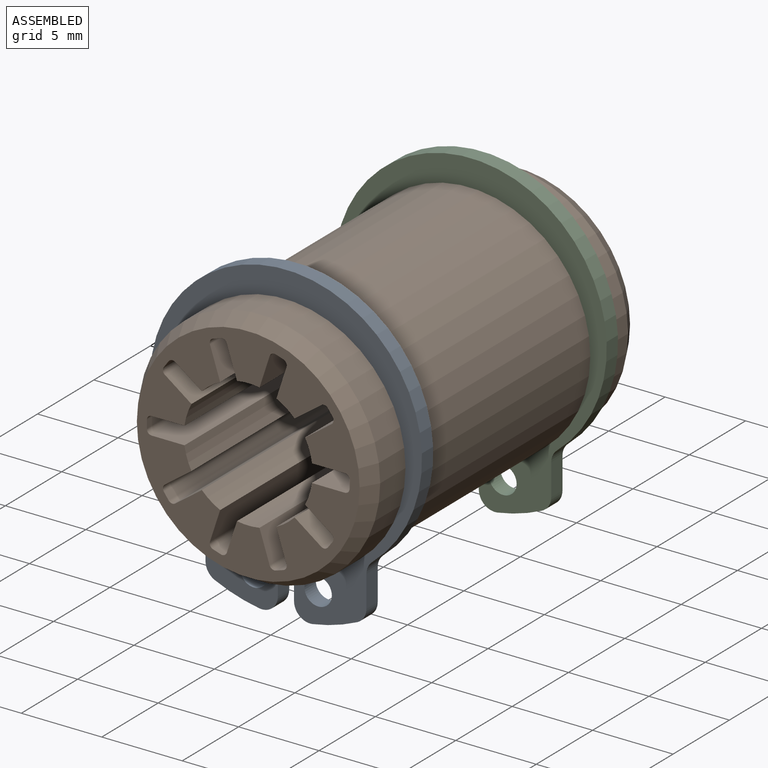
[diagram: assembled view]
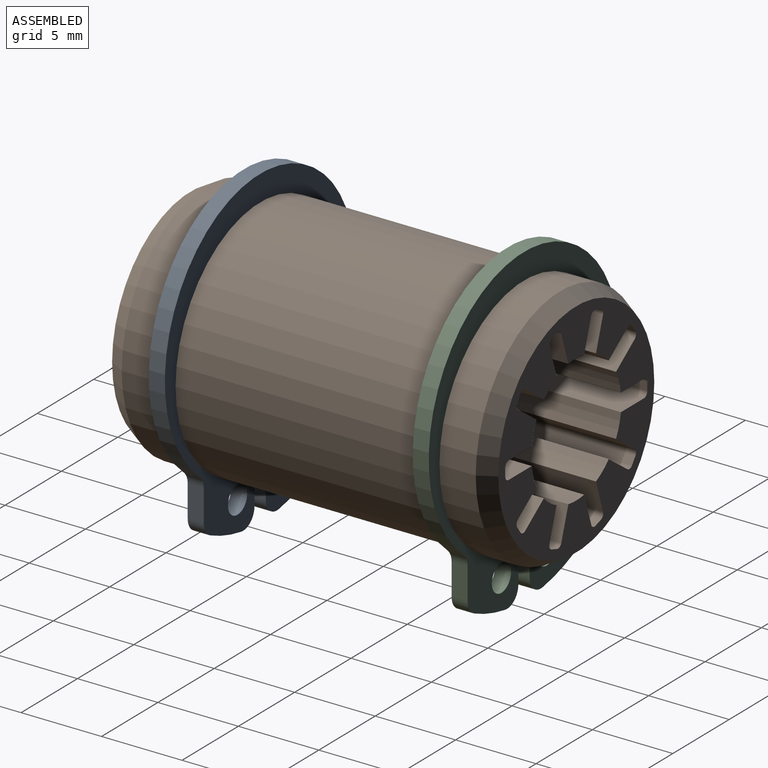
[diagram: assembled view, second angle]
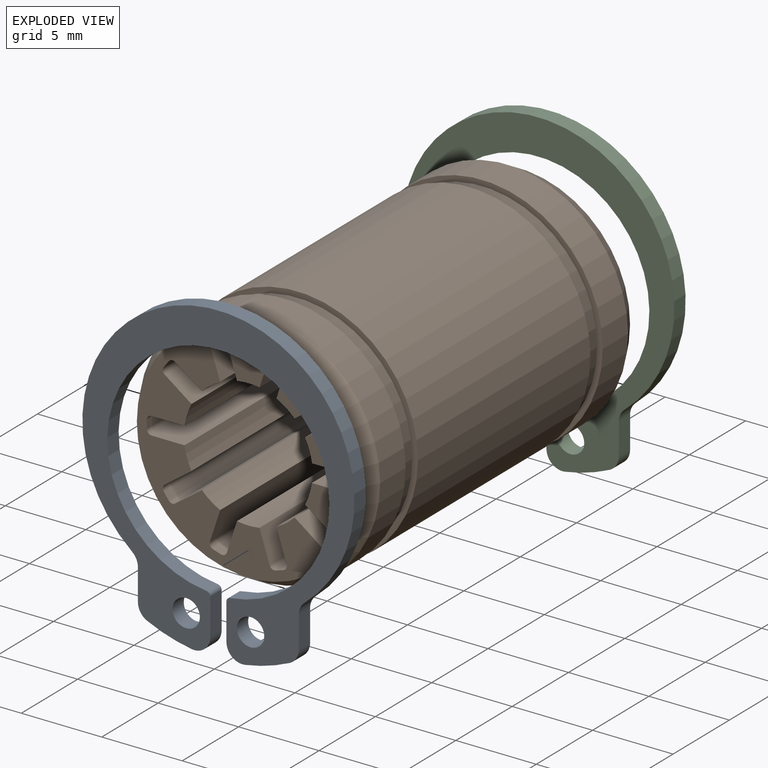
[diagram: exploded view]
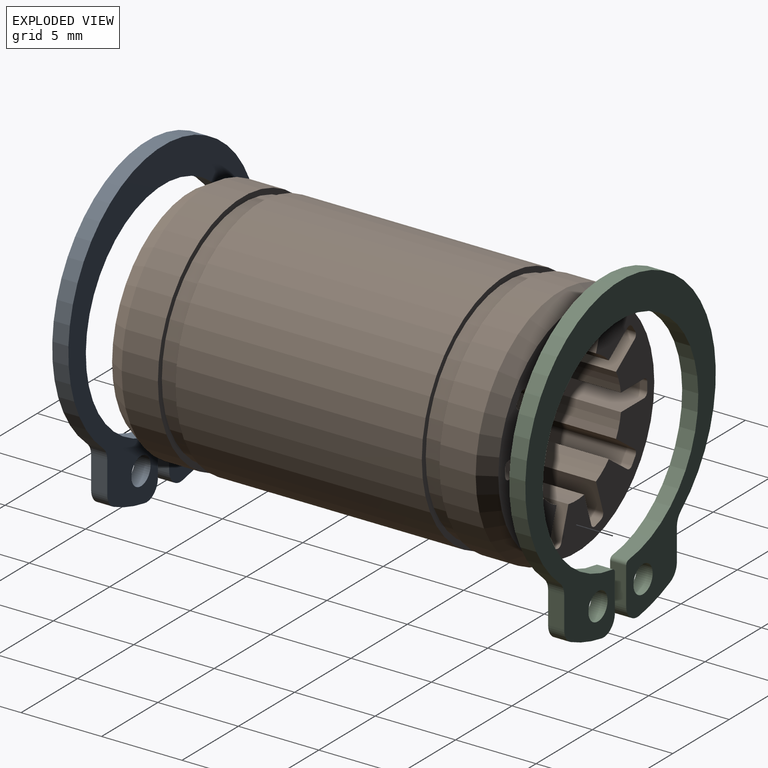
[diagram: exploded view, second angle]
ASSEMBLY  parts=3 mates=2
PART A: 20 faces, bbox 16.9x19.5x1 mm
  f0: plane 1.96x1mm, normal (-1,0,0), area 2mm2, adj f1,f17,f18,f19
  f1: cylinder r=1mm len=1mm, axis (0,0,-1), area 1.1mm2, adj f0,f2,f18,f19
  f2: cylinder r=10.5mm len=2.76mm, axis (0,0,-1), area 2.9mm2, adj f1,f3,f18,f19
  f3: cylinder r=1mm len=1.16mm, axis (0,0,-1), area 1.7mm2, adj f2,f4,f18,f19
  f4: plane 2.27x1mm, normal (1,0,0), area 2.3mm2, adj f3,f5,f18,f19
  f5: cylinder r=0.25mm len=1mm, axis (0,0,-1), area 0.4mm2, adj f4,f6,f18,f19
  f6: cylinder r=6.9mm len=13.8mm, axis (0,0,-1), area 41.9mm2, adj f5,f7,f18,f19
  f7: cylinder r=0.25mm len=1mm, axis (0,0,-1), area 0.4mm2, adj f6,f8,f18,f19
  f8: plane 2.27x1mm, normal (-1,0,0), area 2.3mm2, adj f7,f9,f18,f19
  f9: cylinder r=1mm len=1.16mm, axis (0,0,-1), area 1.7mm2, adj f8,f10,f18,f19
  f10: cylinder r=10.5mm len=2.76mm, axis (0,0,-1), area 2.9mm2, adj f9,f11,f18,f19
  f11: cylinder r=1mm len=1mm, axis (0,0,-1), area 1.1mm2, adj f10,f12,f18,f19
  f12: plane 1.96x1mm, normal (1,0,0), area 2mm2, adj f11,f13,f18,f19
  f13: cylinder r=1mm len=1mm, axis (0,0,-1), area 0.9mm2, adj f12,f14,f18,f19
  f14: cylinder r=8.45mm len=16.91mm, axis (0,0,-1), area 41.5mm2, adj f13,f17,f18,f19
  f15: cylinder r=0.85mm len=1.7mm, axis (0,0,-1), area 5.3mm2, adj f18,f19
  f16: cylinder r=0.85mm len=1.7mm, axis (0,0,-1), area 5.3mm2, adj f18,f19
  f17: cylinder r=1mm len=1mm, axis (0,0,-1), area 0.9mm2, adj f0,f14,f18,f19
  f18: plane 19.48x16.91mm, normal (0,0,1), area 94.2mm2, adj f0,f1,f2,f3,f4,f5,f6,f7
  f19: plane 19.48x16.91mm, normal (0,0,-1), area 94.2mm2, adj f0,f1,f2,f3,f4,f5,f6,f7
PART B: 73 faces, bbox 15x24x15 mm
  f0: cone r=7.21mm half-angle=30deg, axis (0,1,0), area 52.3mm2, adj f3,f72
  f1: cylinder r=7.5mm len=15mm, axis (0,1,0), area 106mm2, adj f2,f68
  f2: cone r=7.21mm half-angle=30deg, axis (0,-1,0), area 52.3mm2, adj f1,f14
  f3: cylinder r=7.5mm len=15mm, axis (0,1,0), area 106mm2, adj f0,f71
  f4: cylinder r=7.15mm len=14.3mm, axis (0,1,0), area 49.4mm2, adj f70,f71
  f5: cylinder r=7.5mm len=15.3mm, axis (0,1,0), area 721mm2, adj f69,f70
  f6: cylinder r=7.15mm len=14.3mm, axis (0,1,0), area 49.4mm2, adj f68,f69
  f7: plane 24x1.65mm, normal (0.59,0,0.81), area 48.9mm2, adj f9,f13,f14,f72
  f8: plane 24x0.4mm, normal (-0.81,0,0.59), area 12mm2, adj f9,f11,f14,f72
  f9: cylinder r=0.3mm len=24mm, axis (0,1,0), area 11.3mm2, adj f7,f8,f14,f72
  f10: plane 24x1.65mm, normal (-0.59,0,-0.81), area 48.9mm2, adj f11,f12,f14,f72
  f11: cylinder r=0.3mm len=24mm, axis (0,1,0), area 11.3mm2, adj f8,f10,f14,f72
  f12: cylinder r=4mm len=24mm, axis (0,1,0), area 33.8mm2, adj f10,f14,f65,f72
  f13: cylinder r=4mm len=24mm, axis (0,1,0), area 33.8mm2, adj f7,f14,f18,f72
  f14: plane 13.85x13.85mm, normal (0,1,0), area 75.2mm2, adj f2,f7,f8,f9,f10,f11,f12,f13
  f15: plane 24x0.48mm, normal (-0.31,0,0.95), area 12mm2, adj f14,f16,f19,f72
  f16: cylinder r=0.3mm len=24mm, axis (0,1,0), area 11.3mm2, adj f14,f15,f17,f72
  f17: plane 24x1.94mm, normal (0.95,0,0.31), area 48.9mm2, adj f14,f16,f25,f72
  f18: plane 24x1.94mm, normal (-0.95,0,-0.31), area 48.9mm2, adj f13,f14,f19,f72
  f19: cylinder r=0.3mm len=24mm, axis (0,1,0), area 11.3mm2, adj f14,f15,f18,f72
  f20: plane 24x1.94mm, normal (0.95,0,-0.31), area 48.9mm2, adj f14,f22,f26,f72
  f21: plane 24x0.48mm, normal (0.31,0,0.95), area 12mm2, adj f14,f22,f24,f72
  f22: cylinder r=0.3mm len=24mm, axis (0,1,0), area 11.3mm2, adj f14,f20,f21,f72
  f23: plane 24x1.94mm, normal (-0.95,0,0.31), area 48.9mm2, adj f14,f24,f25,f72
  f24: cylinder r=0.3mm len=24mm, axis (0,1,0), area 11.3mm2, adj f14,f21,f23,f72
  f25: cylinder r=4mm len=24mm, axis (0,1,0), area 33.8mm2, adj f14,f17,f23,f72
  f26: cylinder r=4mm len=24mm, axis (0,1,0), area 33.8mm2, adj f14,f20,f30,f72
  f27: plane 24x0.4mm, normal (0.81,0,0.59), area 12mm2, adj f14,f28,f31,f72
  f28: cylinder r=0.3mm len=24mm, axis (0,1,0), area 11.3mm2, adj f14,f27,f29,f72
  f29: plane 24x1.65mm, normal (0.59,0,-0.81), area 48.9mm2, adj f14,f28,f37,f72
  f30: plane 24x1.65mm, normal (-0.59,0,0.81), area 48.9mm2, adj f14,f26,f31,f72
  f31: cylinder r=0.3mm len=24mm, axis (0,1,0), area 11.3mm2, adj f14,f27,f30,f72
  f32: plane 24x2.04mm, normal (0,0,-1), area 48.9mm2, adj f14,f34,f38,f72
  f33: plane 24x0.5mm, normal (1,0,0), area 12mm2, adj f14,f34,f36,f72
  f34: cylinder r=0.3mm len=24mm, axis (0,1,0), area 11.3mm2, adj f14,f32,f33,f72
  f35: plane 24x2.04mm, normal (0,0,1), area 48.9mm2, adj f14,f36,f37,f72
  f36: cylinder r=0.3mm len=24mm, axis (0,1,0), area 11.3mm2, adj f14,f33,f35,f72
  f37: cylinder r=4mm len=24mm, axis (0,1,0), area 33.8mm2, adj f14,f29,f35,f72
  f38: cylinder r=4mm len=24mm, axis (0,1,0), area 33.8mm2, adj f14,f32,f42,f72
  f39: plane 24x0.4mm, normal (0.81,0,-0.59), area 12mm2, adj f14,f40,f43,f72
  f40: cylinder r=0.3mm len=24mm, axis (0,1,0), area 11.3mm2, adj f14,f39,f41,f72
  f41: plane 24x1.65mm, normal (-0.59,0,-0.81), area 48.9mm2, adj f14,f40,f49,f72
  f42: plane 24x1.65mm, normal (0.59,0,0.81), area 48.9mm2, adj f14,f38,f43,f72
  f43: cylinder r=0.3mm len=24mm, axis (0,1,0), area 11.3mm2, adj f14,f39,f42,f72
  f44: plane 24x1.94mm, normal (-0.95,0,-0.31), area 48.9mm2, adj f14,f46,f50,f72
  f45: plane 24x0.48mm, normal (0.31,0,-0.95), area 12mm2, adj f14,f46,f48,f72
  f46: cylinder r=0.3mm len=24mm, axis (0,1,0), area 11.3mm2, adj f14,f44,f45,f72
  f47: plane 24x1.94mm, normal (0.95,0,0.31), area 48.9mm2, adj f14,f48,f49,f72
  f48: cylinder r=0.3mm len=24mm, axis (0,1,0), area 11.3mm2, adj f14,f45,f47,f72
  f49: cylinder r=4mm len=24mm, axis (0,1,0), area 33.8mm2, adj f14,f41,f47,f72
  f50: cylinder r=4mm len=24mm, axis (0,1,0), area 33.8mm2, adj f14,f44,f54,f72
  f51: plane 24x0.48mm, normal (-0.31,0,-0.95), area 12mm2, adj f14,f52,f55,f72
  f52: cylinder r=0.3mm len=24mm, axis (0,1,0), area 11.3mm2, adj f14,f51,f53,f72
  f53: plane 24x1.94mm, normal (-0.95,0,0.31), area 48.9mm2, adj f14,f52,f61,f72
  f54: plane 24x1.94mm, normal (0.95,0,-0.31), area 48.9mm2, adj f14,f50,f55,f72
  f55: cylinder r=0.3mm len=24mm, axis (0,1,0), area 11.3mm2, adj f14,f51,f54,f72
  f56: plane 24x1.65mm, normal (-0.59,0,0.81), area 48.9mm2, adj f14,f58,f62,f72
  f57: plane 24x0.4mm, normal (-0.81,0,-0.59), area 12mm2, adj f14,f58,f60,f72
  f58: cylinder r=0.3mm len=24mm, axis (0,1,0), area 11.3mm2, adj f14,f56,f57,f72
  f59: plane 24x1.65mm, normal (0.59,0,-0.81), area 48.9mm2, adj f14,f60,f61,f72
  f60: cylinder r=0.3mm len=24mm, axis (0,1,0), area 11.3mm2, adj f14,f57,f59,f72
  f61: cylinder r=4mm len=24mm, axis (0,1,0), area 33.8mm2, adj f14,f53,f59,f72
  f62: cylinder r=4mm len=24mm, axis (0,1,0), area 33.8mm2, adj f14,f56,f66,f72
  f63: plane 24x0.5mm, normal (-1,0,0), area 12mm2, adj f14,f64,f67,f72
  f64: cylinder r=0.3mm len=24mm, axis (0,1,0), area 11.3mm2, adj f14,f63,f65,f72
  f65: plane 24x2.04mm, normal (0,0,1), area 48.9mm2, adj f12,f14,f64,f72
  f66: plane 24x2.04mm, normal (0,0,-1), area 48.9mm2, adj f14,f62,f67,f72
  f67: cylinder r=0.3mm len=24mm, axis (0,1,0), area 11.3mm2, adj f14,f63,f66,f72
  f68: plane 15x15mm, normal (0,-1,0), area 16.1mm2, adj f1,f6
  f69: plane 15x15mm, normal (0,1,0), area 16.1mm2, adj f5,f6
  f70: plane 15x15mm, normal (0,-1,0), area 16.1mm2, adj f4,f5
  f71: plane 15x15mm, normal (0,1,0), area 16.1mm2, adj f3,f4
  f72: plane 13.85x13.85mm, normal (0,-1,0), area 75.2mm2, adj f0,f7,f8,f9,f10,f11,f12,f13
PART C: same geometry as A
PLACE A rot(axis=(0,0.71,0.71),180deg) t=(0,-8.65,0)mm
PLACE B at identity fixed
PLACE C rot(axis=(0,0.71,0.71),180deg) t=(0,7.75,0)mm
MATE fastened C.f6 <-> B.f0  axis (0,1,0) through (0,8.75,0)mm
MATE fastened A.f6 <-> B.f0  axis (0,1,0) through (0,-7.65,0)mm
